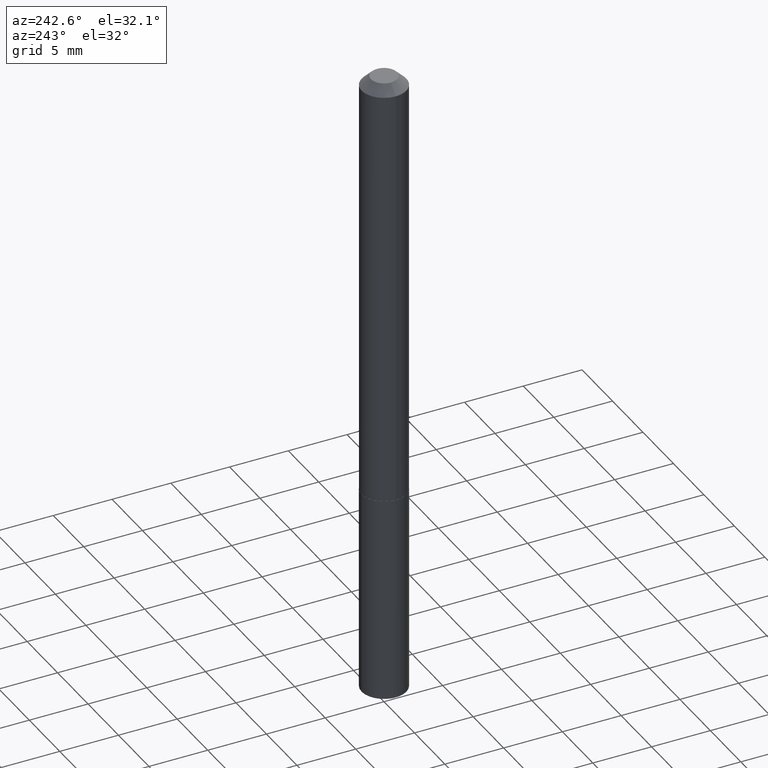
[diagram: clean part render]
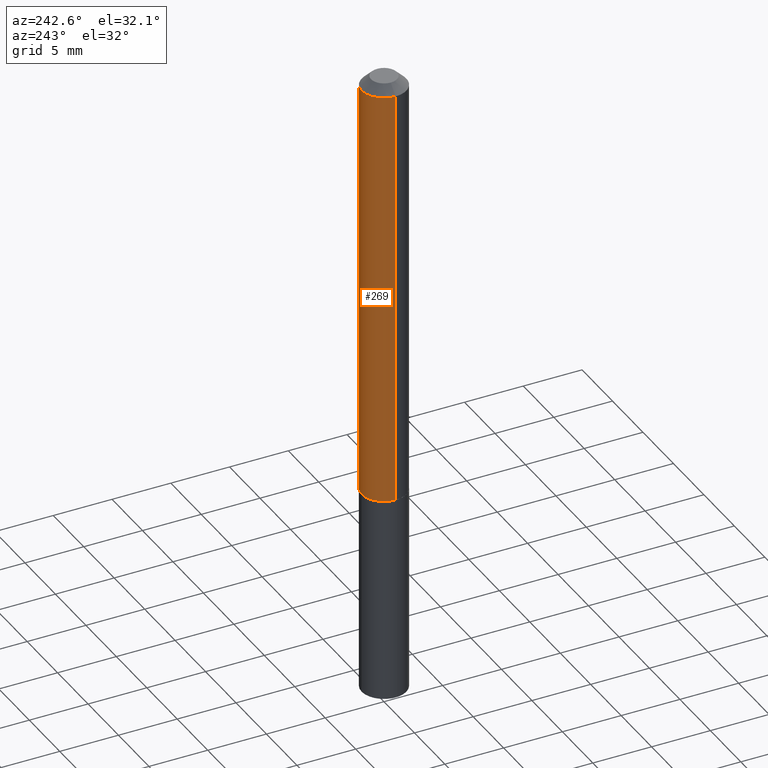
[diagram: same view with one face highlighted and labeled with its STEP entity id]
A machine part, auxiliary view. The second image highlights one B-rep face of the part: STEP entity #269.
In plain terms, the highlighted cylindrical surface (edge-blend (fillet) strip) has radius 1.8999 mm, axis along (-0, 0, 1).
Its self-contained STEP definition (entity closure, byte-faithful):
#16 = ORIENTED_EDGE ( 'NONE', *, *, #22, .T. ) ;
#22 = EDGE_CURVE ( 'NONE', #201, #25, #100, .T. ) ;
#25 = VERTEX_POINT ( 'NONE', #49 ) ;
#49 = CARTESIAN_POINT ( 'NONE',  ( -0.07480000000000000537, -2.051599215161074541E-15, -0.03125000000000020123 ) ) ;
#56 = DIRECTION ( 'NONE',  ( -2.445468806185136597E-29, 3.491481338843145583E-15, 1.000000000000000000 ) ) ;
#59 = DIRECTION ( 'NONE',  ( 1.000000000000000000, -6.982962677686266711E-15, 0.000000000000000000 ) ) ;
#63 = CARTESIAN_POINT ( 'NONE',  ( 0.07480000000000000537, -6.314344001297818025E-16, -0.03125000000000020123 ) ) ;
#93 = EDGE_CURVE ( 'NONE', #375, #201, #304, .T. ) ;
#97 = AXIS2_PLACEMENT_3D ( 'NONE', #386, #56, #380 ) ;
#100 = LINE ( 'NONE', #109, #209 ) ;
#104 = DIRECTION ( 'NONE',  ( 1.000000000000000000, -6.982962677686265922E-15, 4.876176775795935232E-29 ) ) ;
#109 = CARTESIAN_POINT ( 'NONE',  ( -0.07480000000000010252, 5.314859663485556675E-16, -3.679363447510674285E-30 ) ) ;
#132 = CYLINDRICAL_SURFACE ( 'NONE', #309, 0.07480000000000010252 ) ;
#136 = ORIENTED_EDGE ( 'NONE', *, *, #242, .F. ) ;
#145 = AXIS2_PLACEMENT_3D ( 'NONE', #210, #328, #59 ) ;
#191 = FACE_OUTER_BOUND ( 'NONE', #225, .T. ) ;
#201 = VERTEX_POINT ( 'NONE', #297 ) ;
#209 = VECTOR ( 'NONE', #219, 39.37007874015748143 ) ;
#210 = CARTESIAN_POINT ( 'NONE',  ( 7.642090019328601786E-31, -1.091087918388490144E-16, -0.03125000000000020123 ) ) ;
#212 = CARTESIAN_POINT ( 'NONE',  ( 0.07480000000000010252, -5.223256082909333921E-16, 3.647380228295364368E-30 ) ) ;
#214 = CARTESIAN_POINT ( 'NONE',  ( 0.07480000000000018578, -5.579387179471347865E-15, -1.448400000000000354 ) ) ;
#219 = DIRECTION ( 'NONE',  ( -2.445468806185136877E-29, 3.491481338843145188E-15, 1.000000000000000000 ) ) ;
#221 = CARTESIAN_POINT ( 'NONE',  ( 0.000000000000000000, 0.000000000000000000, 0.000000000000000000 ) ) ;
#225 = EDGE_LOOP ( 'NONE', ( #286, #16, #136, #343 ) ) ;
#242 = EDGE_CURVE ( 'NONE', #337, #25, #289, .T. ) ;
#269 = ADVANCED_FACE ( 'NONE', ( #191 ), #132, .T. ) ;
#274 = EDGE_CURVE ( 'NONE', #375, #337, #341, .T. ) ;
#280 = VECTOR ( 'NONE', #331, 39.37007874015748143 ) ;
#286 = ORIENTED_EDGE ( 'NONE', *, *, #93, .T. ) ;
#289 = CIRCLE ( 'NONE', #145, 0.07480000000000000537 ) ;
#297 = CARTESIAN_POINT ( 'NONE',  ( -0.07480000000000018578, -4.525575604831857918E-15, -1.448400000000000354 ) ) ;
#304 = CIRCLE ( 'NONE', #97, 0.07480000000000018578 ) ;
#309 = AXIS2_PLACEMENT_3D ( 'NONE', #221, #370, #104 ) ;
#328 = DIRECTION ( 'NONE',  ( -2.445468806185136597E-29, 3.491481338843145583E-15, 1.000000000000000000 ) ) ;
#331 = DIRECTION ( 'NONE',  ( -2.445468806185136877E-29, 3.491481338843145188E-15, 1.000000000000000000 ) ) ;
#337 = VERTEX_POINT ( 'NONE', #63 ) ;
#341 = LINE ( 'NONE', #212, #280 ) ;
#343 = ORIENTED_EDGE ( 'NONE', *, *, #274, .F. ) ;
#370 = DIRECTION ( 'NONE',  ( -2.445468806185136597E-29, 3.491481338843145583E-15, 1.000000000000000000 ) ) ;
#375 = VERTEX_POINT ( 'NONE', #214 ) ;
#380 = DIRECTION ( 'NONE',  ( 1.000000000000000000, -6.982962677686271444E-15, 0.000000000000000000 ) ) ;
#386 = CARTESIAN_POINT ( 'NONE',  ( 3.542017018878552782E-29, -5.057061571180413486E-15, -1.448400000000000354 ) ) ;